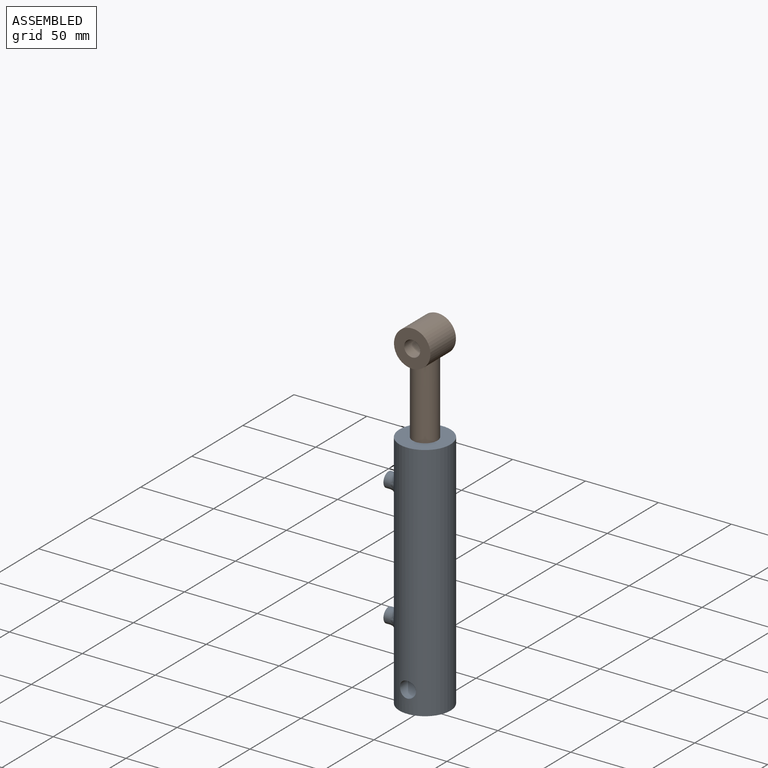
[diagram: assembled view]
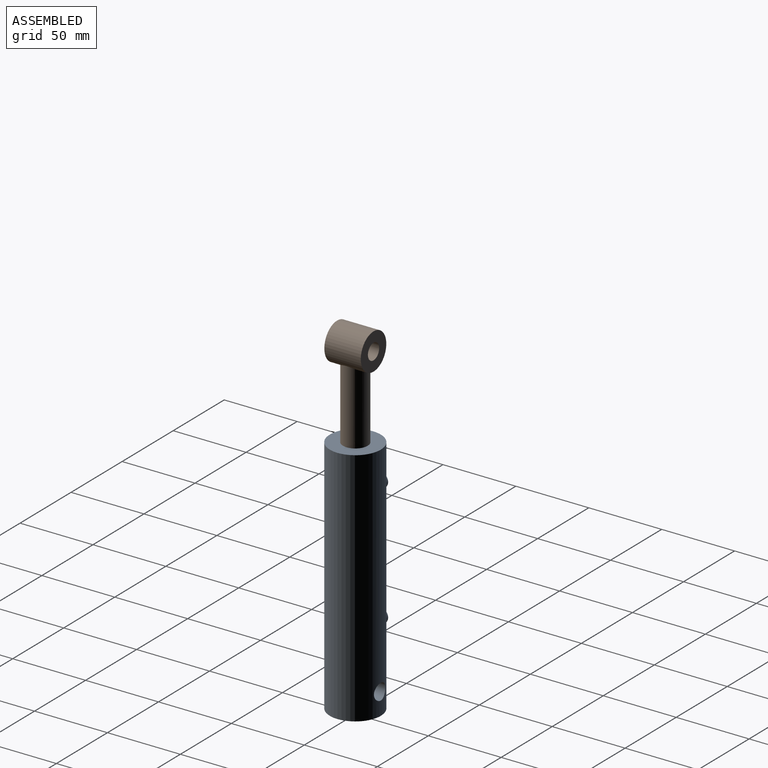
[diagram: assembled view, second angle]
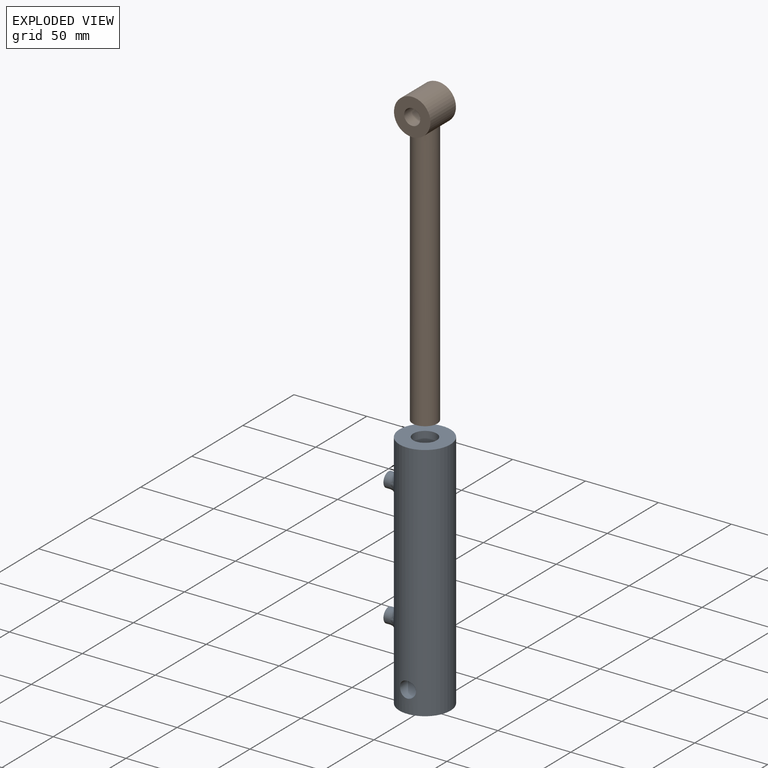
[diagram: exploded view]
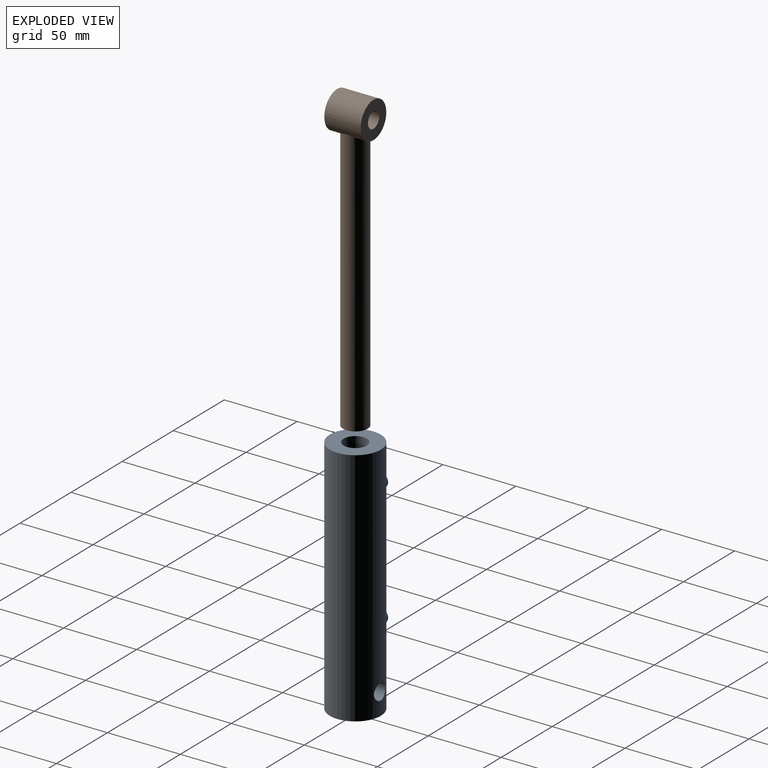
[diagram: exploded view, second angle]
ASSEMBLY  parts=2 mates=2
PART A: 16 faces, bbox 42.5x35x165 mm
  f0: cylinder r=17.5mm len=165mm, axis (0,0,-1), area 17448.3mm2, adj f1,f2,f3,f14,f15
  f1: plane 35x35mm, normal (0,0,1), area 761.1mm2, adj f0,f4
  f2: plane 35x35mm, normal (0,0,-1), area 962.1mm2, adj f0
  f3: cylinder r=5.5mm len=35mm, axis (0,-1,0), area 1179.1mm2, adj f0
  f4: cylinder r=8mm len=133mm, axis (0,0,1), area 6685.3mm2, adj f1,f5
  f5: plane 16x16mm, normal (0,0,1), area 201.1mm2, adj f4
  f6: plane 10x10mm, normal (-1,0,0), area 46.9mm2, adj f7,f8
  f7: cylinder r=5mm len=10mm, axis (-1,0,0), area 114.9mm2, adj f6,f15
  f8: cylinder r=3.17mm len=7.79mm, axis (-1,0,0), area 152.5mm2, adj f6,f9
  f9: cylinder r=17.5mm len=6.35mm, axis (0,0,-1), area 31.8mm2, adj f8
  f10: plane 10x10mm, normal (-1,0,0), area 46.9mm2, adj f11,f12
  f11: cylinder r=5mm len=10mm, axis (-1,0,0), area 114.9mm2, adj f10,f14
  f12: cylinder r=3.17mm len=7.79mm, axis (-1,0,0), area 152.5mm2, adj f10,f13
  f13: cylinder r=17.5mm len=6.35mm, axis (0,0,-1), area 31.8mm2, adj f12
  f14: bspline ~20.02x15.58mm, area 270.7mm2, adj f0,f11
  f15: bspline ~20.02x15.58mm, area 270.7mm2, adj f0,f7
PART B: 6 faces, bbox 25x25x205 mm
  f0: cylinder r=8.5mm len=183.34mm, axis (0,0,-1), area 9698.9mm2, adj f1,f2
  f1: plane 17x17mm, normal (0,0,-1), area 227mm2, adj f0
  f2: cylinder r=12.5mm len=25mm, axis (0,1,0), area 1720.3mm2, adj f0,f4,f5
  f3: cylinder r=5.5mm len=25mm, axis (0,1,0), area 863.9mm2, adj f4,f5
  f4: plane 25x25mm, normal (0,-1,0), area 395.8mm2, adj f2,f3
  f5: plane 25x25mm, normal (0,1,0), area 395.8mm2, adj f2,f3
PLACE A at identity fixed
PLACE B rot(axis=(0,0.03,1),0deg) t=(0,0,-133)mm
MATE cylindrical A.f4 <-> B.f0  axis (0,0,1) through (0,0,32)mm
MATE parallel B.f2 <-> A.f3  axis (0,1,0) through (0,0,224.5)mm
